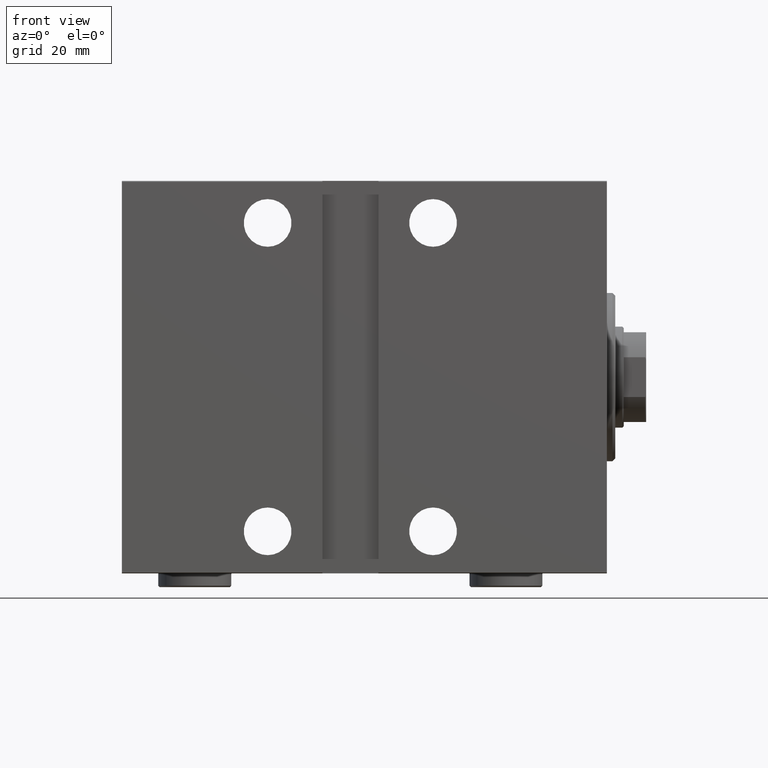
[diagram: clean part render]
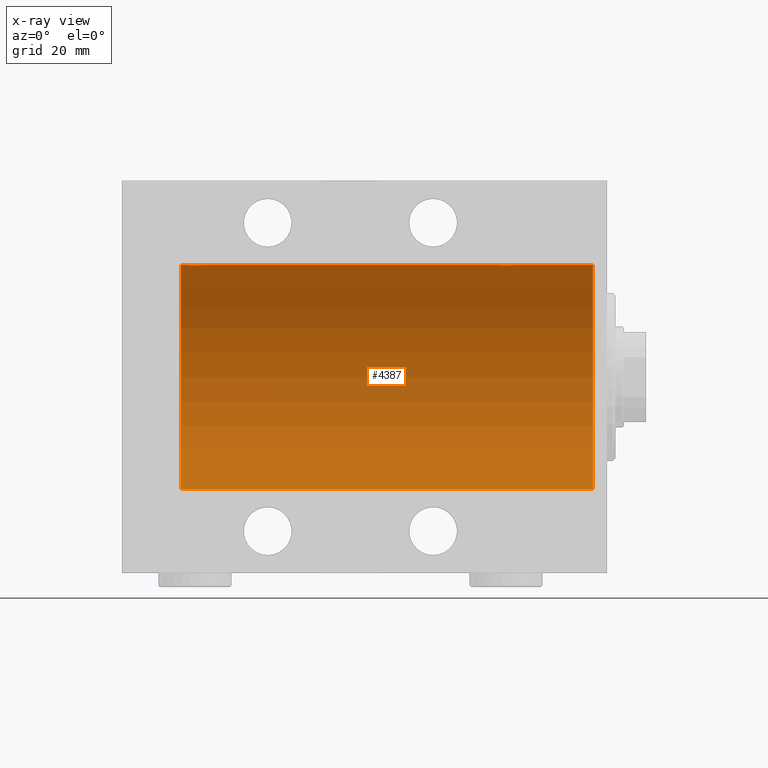
[diagram: x-ray — body ghosted, one internal face saturated and labeled with its STEP entity id]
A machine part, front view, then the same camera in x-ray: the body is ghosted and one INTERNAL B-rep face — a face not visible from any outside direction — is saturated and labeled: STEP entity #4387.
In plain terms, the highlighted cylindrical surface (partial cylindrical patch) has radius 40 mm, axis along (1, 0, -0).
Its self-contained STEP definition (entity closure, byte-faithful):
#191 = CARTESIAN_POINT ( 'NONE',  ( 38.60188728128492386, -1.506322235190783232, 39.97196309111974699 ) ) ;
#216 = ORIENTED_EDGE ( 'NONE', *, *, #35398, .F. ) ;
#412 = CARTESIAN_POINT ( 'NONE',  ( 36.77455678826341057, -2.904869018727228358, 39.89440043036668015 ) ) ;
#630 = CIRCLE ( 'NONE', #22864, 40.00000000000000000 ) ;
#1085 = VECTOR ( 'NONE', #29774, 1000.000000000000000 ) ;
#2210 = CARTESIAN_POINT ( 'NONE',  ( 149.6018872812850020, -1.506322235190787895, 39.97196309111976831 ) ) ;
#2368 = ORIENTED_EDGE ( 'NONE', *, *, #3686, .T. ) ;
#2427 = CARTESIAN_POINT ( 'NONE',  ( 146.6047751654642468, -2.980272303779546217, 39.88883864243170052 ) ) ;
#2688 = CARTESIAN_POINT ( 'NONE',  ( 34.49556917086533758, -2.602909538701760006, 39.91537030566259148 ) ) ;
#2877 = CARTESIAN_POINT ( 'NONE',  ( 144.0000000000000284, -1.482387970046064334E-23, 40.00000000000000000 ) ) ;
#2954 = CARTESIAN_POINT ( 'NONE',  ( 144.0000000000000284, -1.482387970046064334E-23, 40.00000000000000000 ) ) ;
#3095 = CARTESIAN_POINT ( 'NONE',  ( 147.9648932585351702, -2.847401743820454190, 39.89859630624609821 ) ) ;
#3171 = CARTESIAN_POINT ( 'NONE',  ( 152.0000000000000000, 0.000000000000000000, 0.000000000000000000 ) ) ;
#3258 = B_SPLINE_CURVE_WITH_KNOTS ( 'NONE', 3,
 ( #43517, #43734, #15946, #19748, #33435, #27145, #26922, #30503, #44179, #23562, #30285, #2688, #13250, #6499, #20204, #33881, #16821, #13475, #41037, #412, #20854, #31378, #28222, #34966, #3786, #31592, #27799, #191, #37676, #4226, #10100, #30937 ),
 .UNSPECIFIED., .F., .F.,
 ( 4, 2, 2, 2, 2, 2, 2, 2, 2, 2, 2, 2, 2, 2, 2, 4 ),
 ( 0.009382660366305105304, 0.009968941372944142842, 0.01055522237958318038, 0.01114150338622221965, 0.01172778439286125719, 0.01231406539950029473, 0.01290034640613933400, 0.01348662741277837154, 0.01407290841941740908, 0.01465918942605644835, 0.01524547043269548416, 0.01583175143933452517, 0.01641803244597356271, 0.01700431345261260024, 0.01759059445925163778, 0.01876315647252971286 ),
 .UNSPECIFIED. ) ;
#3686 = EDGE_CURVE ( 'NONE', #18561, #31966, #12002, .T. ) ;
#3786 = CARTESIAN_POINT ( 'NONE',  ( 37.98136279514229585, -2.261082456166707111, 39.93628274425758207 ) ) ;
#4114 = EDGE_CURVE ( 'NONE', #31966, #10126, #12610, .T. ) ;
#4226 = CARTESIAN_POINT ( 'NONE',  ( 38.92026174991647025, -0.7903958539027386987, 39.99381900068935636 ) ) ;
#4387 = ADVANCED_FACE ( 'NONE', ( #16865 ), #33697, .F. ) ;
#5180 = CARTESIAN_POINT ( 'NONE',  ( 152.0000000000000000, 0.000000000000000000, 0.000000000000000000 ) ) ;
#5798 = CARTESIAN_POINT ( 'NONE',  ( 144.1533472698686182, -0.9668189122103342248, 39.98872185468384544 ) ) ;
#6243 = CARTESIAN_POINT ( 'NONE',  ( 146.2213047658425467, -2.903766417398230271, 39.89448096967571189 ) ) ;
#6465 = CARTESIAN_POINT ( 'NONE',  ( 147.3910969250933931, -2.980812880639897688, 39.88879797994690080 ) ) ;
#6499 = CARTESIAN_POINT ( 'NONE',  ( 35.03061658105534804, -2.845855236045349734, 39.89870693240651889 ) ) ;
#8146 = EDGE_CURVE ( 'NONE', #22553, #34884, #3258, .T. ) ;
#9188 = DIRECTION ( 'NONE',  ( 0.000000000000000000, 0.000000000000000000, 1.000000000000000000 ) ) ;
#9620 = CARTESIAN_POINT ( 'NONE',  ( 144.7390238300526164, -1.981471132463162643, 39.95113231465138171 ) ) ;
#9706 = CARTESIAN_POINT ( 'NONE',  ( 152.0000000000000000, 0.000000000000000000, 40.00000000000000000 ) ) ;
#9738 = LINE ( 'NONE', #22980, #19566 ) ;
#9849 = CARTESIAN_POINT ( 'NONE',  ( 150.0000000000000284, 1.446721683758770418E-15, 40.00000000000000000 ) ) ;
#10100 = CARTESIAN_POINT ( 'NONE',  ( 39.00000000000000711, -0.3964922677423692865, 40.00000000000000711 ) ) ;
#10126 = VERTEX_POINT ( 'NONE', #42227 ) ;
#11102 = VERTEX_POINT ( 'NONE', #2954 ) ;
#11127 = VERTEX_POINT ( 'NONE', #9706 ) ;
#11771 = CARTESIAN_POINT ( 'NONE',  ( 152.0000000000000000, 4.898587196589413026E-15, -40.00000000000000000 ) ) ;
#12002 = LINE ( 'NONE', #11771, #22643 ) ;
#12235 = EDGE_CURVE ( 'NONE', #18561, #11127, #630, .T. ) ;
#12610 = CIRCLE ( 'NONE', #32658, 40.00000000000000000 ) ;
#12736 = EDGE_CURVE ( 'NONE', #22553, #10126, #30139, .T. ) ;
#13102 = DIRECTION ( 'NONE',  ( -1.000000000000000000, -0.000000000000000000, -0.000000000000000000 ) ) ;
#13103 = DIRECTION ( 'NONE',  ( -1.000000000000000000, -0.000000000000000000, -0.000000000000000000 ) ) ;
#13213 = CARTESIAN_POINT ( 'NONE',  ( 149.9202617499165342, -0.7903958539027363672, 39.99381900068937767 ) ) ;
#13250 = CARTESIAN_POINT ( 'NONE',  ( 34.66775731134134730, -2.695129988695744494, 39.90917164320281074 ) ) ;
#13440 = CARTESIAN_POINT ( 'NONE',  ( 145.0153855218772208, -2.258217541132898631, 39.93644519243653690 ) ) ;
#13475 = CARTESIAN_POINT ( 'NONE',  ( 36.19560531073086906, -3.000157693440643758, 39.88732948994960026 ) ) ;
#15946 = CARTESIAN_POINT ( 'NONE',  ( 33.01898122889073051, -0.3904143323715976166, 39.99856256910221219 ) ) ;
#16094 = LINE ( 'NONE', #27081, #1085 ) ;
#16569 = CARTESIAN_POINT ( 'NONE',  ( 146.0306165810553409, -2.845855236045348402, 39.89870693240650468 ) ) ;
#16821 = CARTESIAN_POINT ( 'NONE',  ( 35.79958713980802543, -2.999840380514749327, 39.88735335562824247 ) ) ;
#16865 = FACE_OUTER_BOUND ( 'NONE', #18642, .T. ) ;
#18558 = VECTOR ( 'NONE', #13103, 1000.000000000000000 ) ;
#18561 = VERTEX_POINT ( 'NONE', #39267 ) ;
#18642 = EDGE_LOOP ( 'NONE', ( #41921, #2368, #44401, #22144, #42586, #216, #30948, #20782 ) ) ;
#19409 = CARTESIAN_POINT ( 'NONE',  ( 32.99999999999999289, -1.483452932268112700E-23, 40.00000000000000000 ) ) ;
#19566 = VECTOR ( 'NONE', #13102, 1000.000000000000000 ) ;
#19711 = CARTESIAN_POINT ( 'NONE',  ( 150.0000000000000284, -0.3964922677423700081, 40.00000000000001421 ) ) ;
#19748 = CARTESIAN_POINT ( 'NONE',  ( 33.09574826348647036, -0.7773146824711036906, 39.99291453282343412 ) ) ;
#19945 = CARTESIAN_POINT ( 'NONE',  ( 144.6149239908465063, -1.830402106103516280, 39.95843610133492518 ) ) ;
#20204 = CARTESIAN_POINT ( 'NONE',  ( 35.22130476584258219, -2.903766417398241373, 39.89448096967571189 ) ) ;
#20782 = ORIENTED_EDGE ( 'NONE', *, *, #29119, .F. ) ;
#20854 = CARTESIAN_POINT ( 'NONE',  ( 36.96489325853514174, -2.847401743820462183, 39.89859630624607689 ) ) ;
#21186 = AXIS2_PLACEMENT_3D ( 'NONE', #3171, #29882, #26743 ) ;
#22144 = ORIENTED_EDGE ( 'NONE', *, *, #12736, .F. ) ;
#22553 = VERTEX_POINT ( 'NONE', #19409 ) ;
#22643 = VECTOR ( 'NONE', #28803, 1000.000000000000000 ) ;
#22864 = AXIS2_PLACEMENT_3D ( 'NONE', #5180, #35923, #36147 ) ;
#22874 = CARTESIAN_POINT ( 'NONE',  ( 149.3825168091146622, -1.833695109615722352, 39.95828327492363030 ) ) ;
#22980 = CARTESIAN_POINT ( 'NONE',  ( 152.0000000000000000, 0.000000000000000000, 40.00000000000000000 ) ) ;
#23081 = CARTESIAN_POINT ( 'NONE',  ( 145.4955691708653092, -2.602909538701757342, 39.91537030566259858 ) ) ;
#23301 = CARTESIAN_POINT ( 'NONE',  ( 148.9813627951423030, -2.261082456166709775, 39.93628274425758207 ) ) ;
#23527 = CARTESIAN_POINT ( 'NONE',  ( 145.6677573113414326, -2.695129988695745826, 39.90917164320281074 ) ) ;
#23562 = CARTESIAN_POINT ( 'NONE',  ( 34.01538552187719233, -2.258217541132905293, 39.93644519243653690 ) ) ;
#26743 = DIRECTION ( 'NONE',  ( 0.000000000000000000, 0.000000000000000000, 1.000000000000000000 ) ) ;
#26884 = CARTESIAN_POINT ( 'NONE',  ( 144.0189812288907660, -0.3904143323715967839, 39.99856256910221219 ) ) ;
#26922 = CARTESIAN_POINT ( 'NONE',  ( 33.39566400087915810, -1.502129635934004614, 39.97212271185186694 ) ) ;
#27081 = CARTESIAN_POINT ( 'NONE',  ( 152.0000000000000000, 0.000000000000000000, 40.00000000000000000 ) ) ;
#27112 = CARTESIAN_POINT ( 'NONE',  ( 149.2582967032050760, -1.984537326394308909, 39.95097977400577349 ) ) ;
#27145 = CARTESIAN_POINT ( 'NONE',  ( 33.30278659419118270, -1.327859336864150253, 39.97836169682017982 ) ) ;
#27799 = CARTESIAN_POINT ( 'NONE',  ( 38.38251680911464803, -1.833695109615718355, 39.95828327492363741 ) ) ;
#28222 = CARTESIAN_POINT ( 'NONE',  ( 37.50088468404035069, -2.604941918888315833, 39.91523680494983495 ) ) ;
#28803 = DIRECTION ( 'NONE',  ( -1.000000000000000000, -0.000000000000000000, -0.000000000000000000 ) ) ;
#29119 = EDGE_CURVE ( 'NONE', #11127, #36911, #9738, .T. ) ;
#29154 = DIRECTION ( 'NONE',  ( -1.000000000000000000, 0.000000000000000000, 0.000000000000000000 ) ) ;
#29774 = DIRECTION ( 'NONE',  ( -1.000000000000000000, -0.000000000000000000, -0.000000000000000000 ) ) ;
#29803 = CARTESIAN_POINT ( 'NONE',  ( 144.0957482634864846, -0.7773146824711021363, 39.99291453282343412 ) ) ;
#29882 = DIRECTION ( 'NONE',  ( -1.000000000000000000, -0.000000000000000000, -0.000000000000000000 ) ) ;
#30139 = LINE ( 'NONE', #43809, #18558 ) ;
#30247 = CARTESIAN_POINT ( 'NONE',  ( 148.3285364474630228, -2.696981015661923387, 39.90904630908469386 ) ) ;
#30285 = CARTESIAN_POINT ( 'NONE',  ( 34.16955177177597847, -2.384933850258112553, 39.92898715513240404 ) ) ;
#30466 = CARTESIAN_POINT ( 'NONE',  ( 144.0000000000000284, -0.1957844162750525807, 40.00000000000000000 ) ) ;
#30503 = CARTESIAN_POINT ( 'NONE',  ( 33.61492399084646365, -1.830402106103518722, 39.95843610133494650 ) ) ;
#30937 = CARTESIAN_POINT ( 'NONE',  ( 39.00000000000000000, 1.037715139942869821E-15, 40.00000000000000000 ) ) ;
#30948 = ORIENTED_EDGE ( 'NONE', *, *, #31891, .T. ) ;
#31378 = CARTESIAN_POINT ( 'NONE',  ( 37.32853644746295885, -2.696981015661930936, 39.90904630908465833 ) ) ;
#31592 = CARTESIAN_POINT ( 'NONE',  ( 38.25829670320502629, -1.984537326394305801, 39.95097977400578060 ) ) ;
#31891 = EDGE_CURVE ( 'NONE', #11102, #36911, #39112, .T. ) ;
#31966 = VERTEX_POINT ( 'NONE', #41003 ) ;
#32658 = AXIS2_PLACEMENT_3D ( 'NONE', #32956, #29154, #9188 ) ;
#32956 = CARTESIAN_POINT ( 'NONE',  ( 5.000000000000004441, 0.000000000000000000, 0.000000000000000000 ) ) ;
#33435 = CARTESIAN_POINT ( 'NONE',  ( 33.15334726986859692, -0.9668189122103387767, 39.98872185468385254 ) ) ;
#33622 = CARTESIAN_POINT ( 'NONE',  ( 149.6953700770844193, -1.331594428131642527, 39.97823692017210107 ) ) ;
#33697 = CYLINDRICAL_SURFACE ( 'NONE', #21186, 40.00000000000000000 ) ;
#33881 = CARTESIAN_POINT ( 'NONE',  ( 35.60477516546423260, -2.980272303779553766, 39.88883864243167920 ) ) ;
#33998 = CARTESIAN_POINT ( 'NONE',  ( 150.0000000000000284, 1.446721683758770418E-15, 40.00000000000000000 ) ) ;
#34884 = VERTEX_POINT ( 'NONE', #40860 ) ;
#34966 = CARTESIAN_POINT ( 'NONE',  ( 37.82690184632411246, -2.387636253591820079, 39.92882473497731866 ) ) ;
#35398 = EDGE_CURVE ( 'NONE', #11102, #34884, #16094, .T. ) ;
#35923 = DIRECTION ( 'NONE',  ( -1.000000000000000000, 0.000000000000000000, 0.000000000000000000 ) ) ;
#36147 = DIRECTION ( 'NONE',  ( 0.000000000000000000, 0.000000000000000000, 1.000000000000000000 ) ) ;
#36759 = CARTESIAN_POINT ( 'NONE',  ( 147.1956053107309685, -3.000157693440639761, 39.88732948994960736 ) ) ;
#36911 = VERTEX_POINT ( 'NONE', #33998 ) ;
#36985 = CARTESIAN_POINT ( 'NONE',  ( 145.1695517717760424, -2.384933850258109445, 39.92898715513240404 ) ) ;
#37209 = CARTESIAN_POINT ( 'NONE',  ( 144.3027865941912182, -1.327859336864145590, 39.97836169682017982 ) ) ;
#37676 = CARTESIAN_POINT ( 'NONE',  ( 38.69537007708435539, -1.331594428131644747, 39.97823692017209396 ) ) ;
#39112 = B_SPLINE_CURVE_WITH_KNOTS ( 'NONE', 3,
 ( #2877, #30466, #26884, #29803, #5798, #37209, #43701, #19945, #9620, #13440, #36985, #23081, #23527, #16569, #6243, #2427, #40566, #36759, #6465, #43263, #3095, #30247, #43482, #43916, #23301, #27112, #22874, #2210, #33622, #13213, #19711, #9849 ),
 .UNSPECIFIED., .F., .F.,
 ( 4, 2, 2, 2, 2, 2, 2, 2, 2, 2, 2, 2, 2, 2, 2, 4 ),
 ( 0.009382660366305094896, 0.009968941372944130699, 0.01055522237958316650, 0.01114150338622220404, 0.01172778439286123985, 0.01231406539950027565, 0.01290034640613930972, 0.01348662741277834379, 0.01407290841941737959, 0.01465918942605641540, 0.01524547043269544946, 0.01583175143933448353, 0.01641803244597352107, 0.01700431345261255514, 0.01759059445925158921, 0.01876315647252969204 ),
 .UNSPECIFIED. ) ;
#39267 = CARTESIAN_POINT ( 'NONE',  ( 152.0000000000000000, 4.898587196589413026E-15, -40.00000000000000000 ) ) ;
#40566 = CARTESIAN_POINT ( 'NONE',  ( 146.7995871398080112, -2.999840380514742666, 39.88735335562825668 ) ) ;
#40860 = CARTESIAN_POINT ( 'NONE',  ( 39.00000000000000000, 1.037715139942869821E-15, 40.00000000000000000 ) ) ;
#41003 = CARTESIAN_POINT ( 'NONE',  ( 5.000000000000004441, 4.898587196589413026E-15, -40.00000000000000000 ) ) ;
#41037 = CARTESIAN_POINT ( 'NONE',  ( 36.39109692509333627, -2.980812880639903906, 39.88879797994688658 ) ) ;
#41921 = ORIENTED_EDGE ( 'NONE', *, *, #12235, .F. ) ;
#42227 = CARTESIAN_POINT ( 'NONE',  ( 5.000000000000004441, 0.000000000000000000, 40.00000000000000000 ) ) ;
#42586 = ORIENTED_EDGE ( 'NONE', *, *, #8146, .T. ) ;
#43263 = CARTESIAN_POINT ( 'NONE',  ( 147.7745567882635100, -2.904869018727220364, 39.89440043036669437 ) ) ;
#43482 = CARTESIAN_POINT ( 'NONE',  ( 148.5008846840404146, -2.604941918888313612, 39.91523680494984916 ) ) ;
#43517 = CARTESIAN_POINT ( 'NONE',  ( 32.99999999999999289, -1.483452932268112700E-23, 40.00000000000000000 ) ) ;
#43701 = CARTESIAN_POINT ( 'NONE',  ( 144.3956640008792078, -1.502129635934003948, 39.97212271185186694 ) ) ;
#43734 = CARTESIAN_POINT ( 'NONE',  ( 32.99999999999997158, -0.1957844162750552452, 40.00000000000000000 ) ) ;
#43809 = CARTESIAN_POINT ( 'NONE',  ( 152.0000000000000000, 0.000000000000000000, 40.00000000000000000 ) ) ;
#43916 = CARTESIAN_POINT ( 'NONE',  ( 148.8269018463241480, -2.387636253591820079, 39.92882473497732576 ) ) ;
#44179 = CARTESIAN_POINT ( 'NONE',  ( 33.73902383005257377, -1.981471132463168416, 39.95113231465138881 ) ) ;
#44401 = ORIENTED_EDGE ( 'NONE', *, *, #4114, .T. ) ;